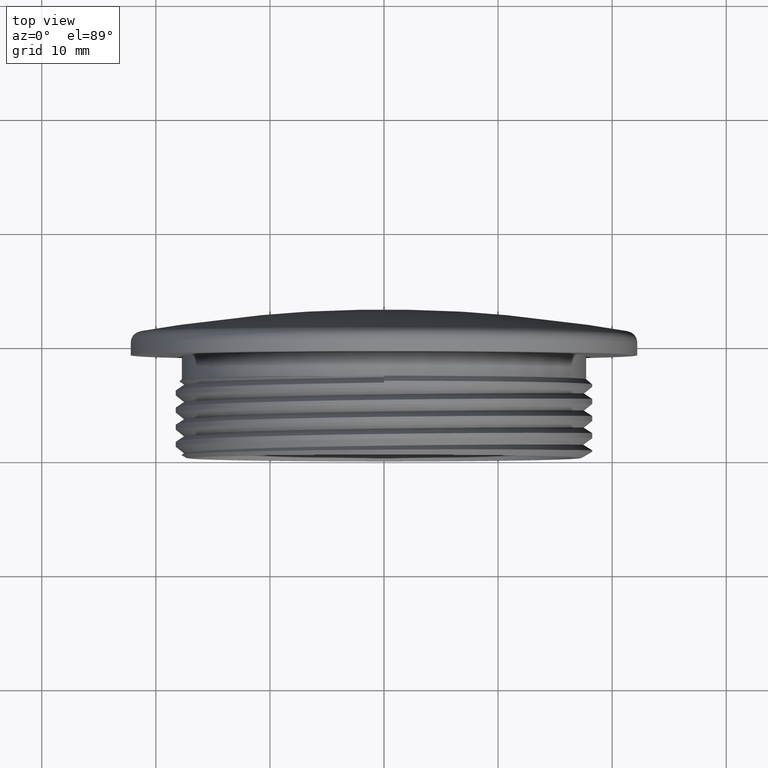
[diagram: clean part render]
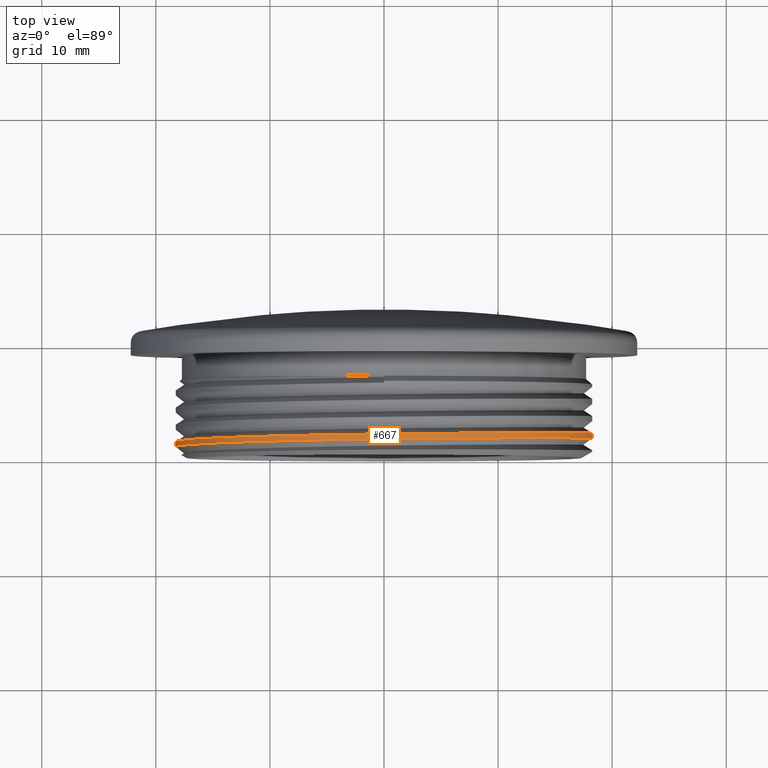
[diagram: same view with one face highlighted and labeled with its STEP entity id]
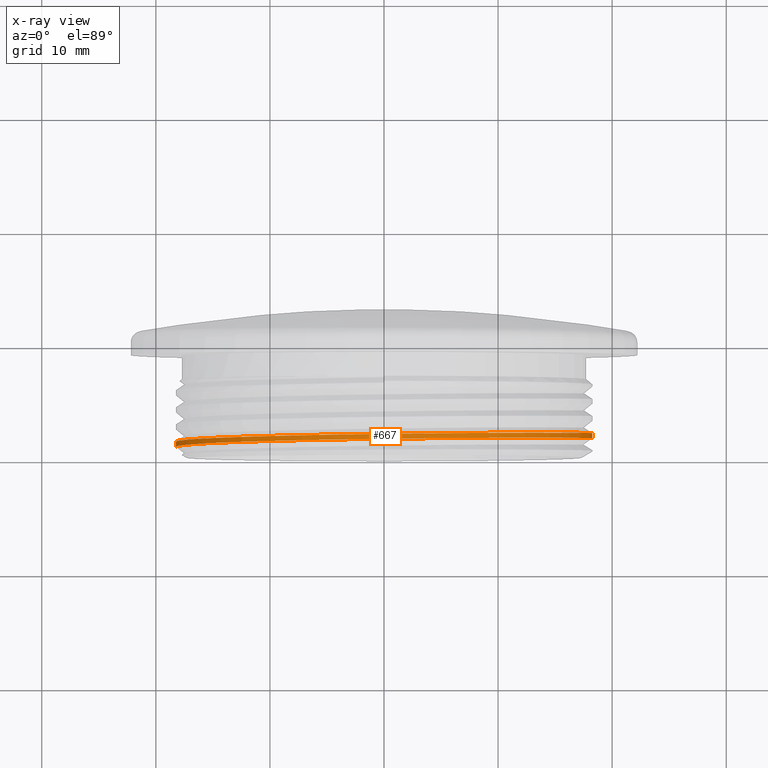
[diagram: x-ray of the same camera — body ghosted, the highlighted face saturated]
A machine part, top view. The second image highlights one B-rep face of the part: STEP entity #667.
The next image is the same camera in x-ray: the body ghosted, the highlighted face saturated — about 0% of this face is hidden behind the body in this view.
In plain terms, the highlighted cylindrical surface (partial cylindrical patch) has radius 18.2507 mm, axis along (-0, -1, -0).
Its self-contained STEP definition (entity closure, byte-faithful):
#53 = ORIENTED_EDGE ( 'NONE', *, *, #635, .F. ) ;
#74 = ORIENTED_EDGE ( 'NONE', *, *, #614, .F. ) ;
#76 = ORIENTED_EDGE ( 'NONE', *, *, #572, .T. ) ;
#109 = ORIENTED_EDGE ( 'NONE', *, *, #619, .T. ) ;
#253 = VERTEX_POINT ( 'NONE', #334 ) ;
#258 = VERTEX_POINT ( 'NONE', #337 ) ;
#261 = EDGE_LOOP ( 'NONE', ( #109, #76, #74, #53 ) ) ;
#265 = VERTEX_POINT ( 'NONE', #328 ) ;
#297 = VERTEX_POINT ( 'NONE', #316 ) ;
#316 = CARTESIAN_POINT ( 'NONE',  ( -18.25067755449281400, 1.426765167993386600, -1.982765944129785100E-014 ) ) ;
#328 = CARTESIAN_POINT ( 'NONE',  ( 18.25067755449299200, 2.176765167991642400, -3.823660064563868600E-014 ) ) ;
#334 = CARTESIAN_POINT ( 'NONE',  ( -18.25067755449283200, 0.9881180473594322100, -1.454027503948027500E-014 ) ) ;
#337 = CARTESIAN_POINT ( 'NONE',  ( 18.25067755449297000, 1.738118047357697600, -4.352398504745437800E-014 ) ) ;
#396 = LINE ( 'NONE', #406, #746 ) ;
#406 = CARTESIAN_POINT ( 'NONE',  ( -18.25067755449288500, 8.691005011087698700E-013, 2.235063384938015500E-015 ) ) ;
#429 = DIRECTION ( 'NONE',  ( -4.762017730650322400E-014, -1.000000000000000000, -0.0000000000000000000 ) ) ;
#572 = EDGE_CURVE ( 'NONE', #297, #253, #396, .T. ) ;
#614 = EDGE_CURVE ( 'NONE', #258, #253, #725, .T. ) ;
#619 = EDGE_CURVE ( 'NONE', #265, #297, #736, .T. ) ;
#635 = EDGE_CURVE ( 'NONE', #265, #258, #2077, .T. ) ;
#667 = ADVANCED_FACE ( 'NONE', ( #1180 ), #1150, .T. ) ;
#725 =( BOUNDED_CURVE ( )  B_SPLINE_CURVE ( 2, ( #1972, #1961, #1962, #1994, #1988, #1951, #1966, #1952, #1969 ),
 .UNSPECIFIED., .F., .T. ) 
 B_SPLINE_CURVE_WITH_KNOTS ( ( 3, 2, 2, 2, 3 ),
 ( 0.4471656273615985400, 0.4616568155287830200, 0.4761480036959674400, 0.4906391918631519100, 0.5051303800303363900 ),
 .UNSPECIFIED. ) 
 CURVE ( )  GEOMETRIC_REPRESENTATION_ITEM ( )  RATIONAL_B_SPLINE_CURVE ( ( 1.000000000000006000, 0.9238795325112806300, 1.000000000000000000, 0.9238795325112867400, 1.000000000000000000, 0.9238795325112867400, 1.000000000000000000, 0.9238795325112885100, 0.9999999999999982200 ) ) 
 REPRESENTATION_ITEM ( '' )  );
#736 =( BOUNDED_CURVE ( )  B_SPLINE_CURVE ( 2, ( #1999, #2015, #2026, #2040, #2038, #2035, #2007, #2006, #2012 ),
 .UNSPECIFIED., .F., .T. ) 
 B_SPLINE_CURVE_WITH_KNOTS ( ( 3, 2, 2, 2, 3 ),
 ( 0.3309915744001457000, 0.3454708918634069600, 0.3599502093266683200, 0.3744295267899296300, 0.3889088442531910000 ),
 .UNSPECIFIED. ) 
 CURVE ( )  GEOMETRIC_REPRESENTATION_ITEM ( )  RATIONAL_B_SPLINE_CURVE ( ( 1.000000000000002200, 0.9238795325112846300, 1.000000000000000000, 0.9238795325112867400, 1.000000000000000000, 0.9238795325112867400, 1.000000000000000000, 0.9238795325112882900, 0.9999999999999984500 ) ) 
 REPRESENTATION_ITEM ( '' )  );
#746 = VECTOR ( 'NONE', #429, 1000.000000000000000 ) ;
#807 = VECTOR ( 'NONE', #2126, 1000.000000000000000 ) ;
#830 = AXIS2_PLACEMENT_3D ( 'NONE', #1185, #1144, #1166 ) ;
#1144 = DIRECTION ( 'NONE',  ( -4.762017730650322400E-014, -1.000000000000000000, -0.0000000000000000000 ) ) ;
#1150 = CYLINDRICAL_SURFACE ( 'NONE', #830, 18.25067755449288500 ) ;
#1166 = DIRECTION ( 'NONE',  ( 1.000000000000000000, -4.762017730650322400E-014, 0.0000000000000000000 ) ) ;
#1180 = FACE_OUTER_BOUND ( 'NONE', #261, .T. ) ;
#1185 = CARTESIAN_POINT ( 'NONE',  ( 0.0000000000000000000, 0.0000000000000000000, 0.0000000000000000000 ) ) ;
#1951 = CARTESIAN_POINT ( 'NONE',  ( -7.559678165569478000, 1.269368047358921100, 18.25067755449273900 ) ) ;
#1952 = CARTESIAN_POINT ( 'NONE',  ( -18.25067755449283200, 1.081868047359432200, 7.559678165568973500 ) ) ;
#1961 = CARTESIAN_POINT ( 'NONE',  ( 18.25067755449327900, 1.644368047357701600, 7.559678165569077500 ) ) ;
#1962 = CARTESIAN_POINT ( 'NONE',  ( 12.90517786003086300, 1.550618047357946900, 12.90517786003127800 ) ) ;
#1966 = CARTESIAN_POINT ( 'NONE',  ( -12.90517786003122500, 1.175618047359176200, 12.90517786003078600 ) ) ;
#1969 = CARTESIAN_POINT ( 'NONE',  ( -18.25067755449283200, 0.9881180473594322100, -1.454027503948027500E-014 ) ) ;
#1972 = CARTESIAN_POINT ( 'NONE',  ( 18.25067755449297000, 1.738118047357697600, -4.352398504745437800E-014 ) ) ;
#1988 = CARTESIAN_POINT ( 'NONE',  ( -2.857210638390193400E-013, 1.363118047358561300, 18.25067755449288500 ) ) ;
#1994 = CARTESIAN_POINT ( 'NONE',  ( 7.559678165568919400, 1.456868047358202100, 18.25067755449302700 ) ) ;
#1999 = CARTESIAN_POINT ( 'NONE',  ( 18.25067755449299200, 2.176765167991642400, -3.823660064563868600E-014 ) ) ;
#2006 = CARTESIAN_POINT ( 'NONE',  ( -18.25067755449282500, 1.520515167993383300, 7.559678165569001100 ) ) ;
#2007 = CARTESIAN_POINT ( 'NONE',  ( -12.90517786003117400, 1.614265167993127200, 12.90517786003082400 ) ) ;
#2012 = CARTESIAN_POINT ( 'NONE',  ( -18.25067755449281400, 1.426765167993386600, -1.982765944129785100E-014 ) ) ;
#2015 = CARTESIAN_POINT ( 'NONE',  ( 18.25067755449301600, 2.083015167991645500, 7.559678165569328800 ) ) ;
#2026 = CARTESIAN_POINT ( 'NONE',  ( 12.90517786003091800, 1.989265167991897300, 12.90517786003124800 ) ) ;
#2035 = CARTESIAN_POINT ( 'NONE',  ( -7.559678165569405200, 1.708015167992872100, 18.25067755449276100 ) ) ;
#2038 = CARTESIAN_POINT ( 'NONE',  ( -2.142907978792645600E-013, 1.801765167992511500, 18.25067755449288100 ) ) ;
#2040 = CARTESIAN_POINT ( 'NONE',  ( 7.559678165568987800, 1.895515167992152300, 18.25067755449300600 ) ) ;
#2077 = LINE ( 'NONE', #2078, #807 ) ;
#2078 = CARTESIAN_POINT ( 'NONE',  ( 18.25067755449288500, -8.691005011087698700E-013, 0.0000000000000000000 ) ) ;
#2126 = DIRECTION ( 'NONE',  ( -4.762017730650322400E-014, -1.000000000000000000, -0.0000000000000000000 ) ) ;